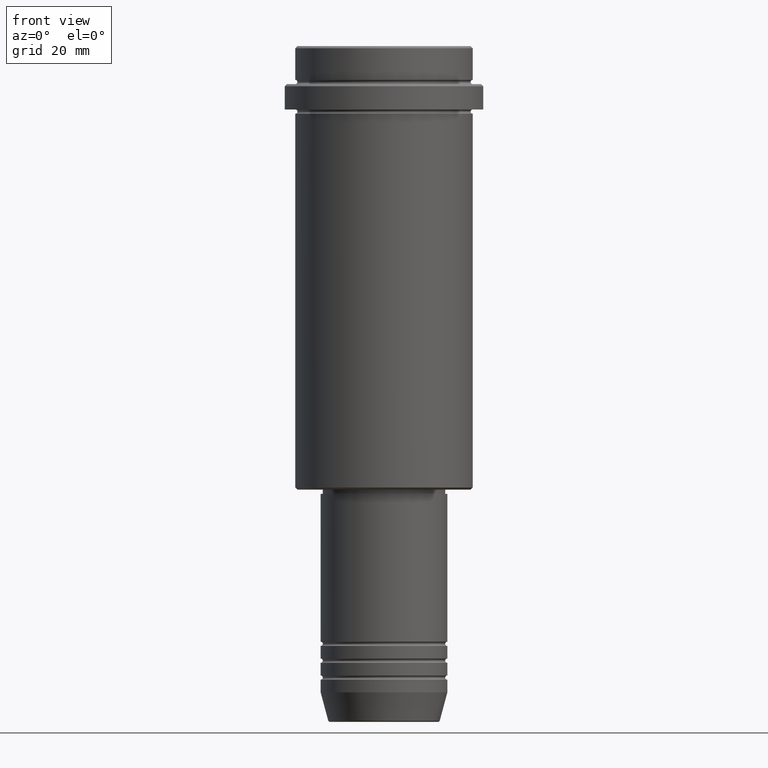
[diagram: clean part render]
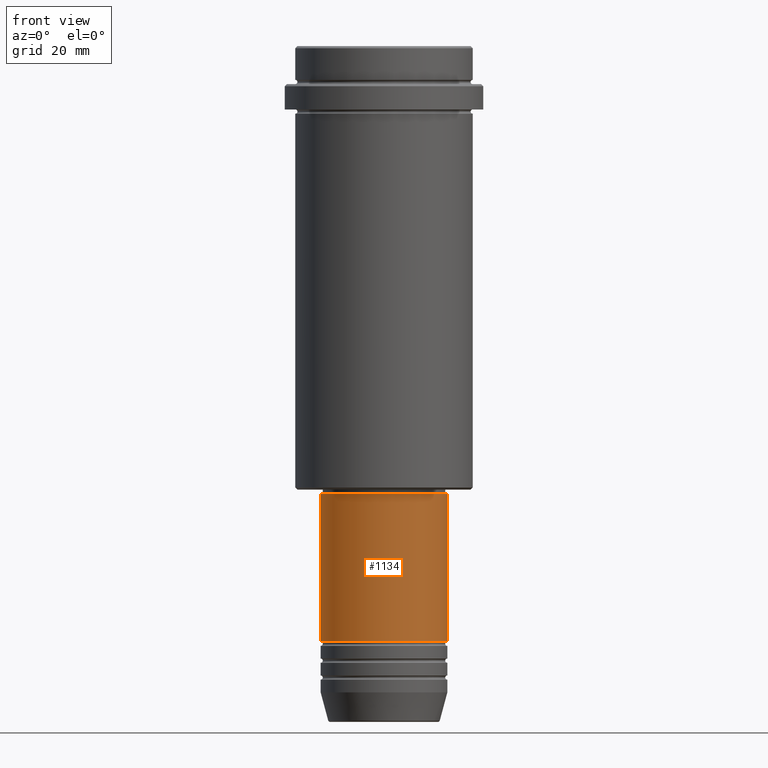
[diagram: same view with one face highlighted and labeled with its STEP entity id]
A machine part, front view. The second image highlights one B-rep face of the part: STEP entity #1134.
In plain terms, the highlighted cylindrical surface (partial cylindrical patch) has radius 15 mm, axis along (-0, -0, 1).
Its self-contained STEP definition (entity closure, byte-faithful):
#29 = LINE ( 'NONE', #992, #525 ) ;
#137 = ORIENTED_EDGE ( 'NONE', *, *, #231, .T. ) ;
#138 = CARTESIAN_POINT ( 'NONE',  ( 0.000000000000000000, 0.000000000000000000, 0.000000000000000000 ) ) ;
#143 = CYLINDRICAL_SURFACE ( 'NONE', #1349, 15.00000000000000000 ) ;
#172 = CIRCLE ( 'NONE', #520, 15.00000000000000000 ) ;
#193 = DIRECTION ( 'NONE',  ( -0.000000000000000000, -0.000000000000000000, 1.000000000000000000 ) ) ;
#231 = EDGE_CURVE ( 'NONE', #660, #436, #172, .T. ) ;
#280 = EDGE_CURVE ( 'NONE', #723, #456, #1113, .T. ) ;
#411 = CARTESIAN_POINT ( 'NONE',  ( -15.00000000000000000, 1.836970198721029589E-15, -106.0000000000000142 ) ) ;
#436 = VERTEX_POINT ( 'NONE', #842 ) ;
#456 = VERTEX_POINT ( 'NONE', #1133 ) ;
#469 = FACE_OUTER_BOUND ( 'NONE', #1201, .T. ) ;
#520 = AXIS2_PLACEMENT_3D ( 'NONE', #538, #970, #1199 ) ;
#525 = VECTOR ( 'NONE', #580, 1000.000000000000000 ) ;
#538 = CARTESIAN_POINT ( 'NONE',  ( 0.000000000000000000, 0.000000000000000000, -140.9999999999999147 ) ) ;
#580 = DIRECTION ( 'NONE',  ( -0.000000000000000000, -0.000000000000000000, 1.000000000000000000 ) ) ;
#583 = DIRECTION ( 'NONE',  ( -0.000000000000000000, -0.000000000000000000, 1.000000000000000000 ) ) ;
#640 = CARTESIAN_POINT ( 'NONE',  ( -15.00000000000000000, 1.836970198721029589E-15, -140.9999999999999147 ) ) ;
#650 = DIRECTION ( 'NONE',  ( 1.000000000000000000, 0.000000000000000000, 0.000000000000000000 ) ) ;
#660 = VERTEX_POINT ( 'NONE', #640 ) ;
#723 = VERTEX_POINT ( 'NONE', #411 ) ;
#748 = LINE ( 'NONE', #967, #963 ) ;
#785 = EDGE_CURVE ( 'NONE', #660, #723, #29, .T. ) ;
#837 = ORIENTED_EDGE ( 'NONE', *, *, #785, .F. ) ;
#842 = CARTESIAN_POINT ( 'NONE',  ( 15.00000000000000000, 0.000000000000000000, -140.9999999999999147 ) ) ;
#963 = VECTOR ( 'NONE', #193, 1000.000000000000000 ) ;
#967 = CARTESIAN_POINT ( 'NONE',  ( 15.00000000000000000, 0.000000000000000000, 0.000000000000000000 ) ) ;
#970 = DIRECTION ( 'NONE',  ( -0.000000000000000000, -0.000000000000000000, 1.000000000000000000 ) ) ;
#992 = CARTESIAN_POINT ( 'NONE',  ( -15.00000000000000000, 1.836970198721029589E-15, 0.000000000000000000 ) ) ;
#1009 = AXIS2_PLACEMENT_3D ( 'NONE', #1398, #1295, #650 ) ;
#1012 = DIRECTION ( 'NONE',  ( 1.000000000000000000, 0.000000000000000000, 0.000000000000000000 ) ) ;
#1110 = EDGE_CURVE ( 'NONE', #436, #456, #748, .T. ) ;
#1113 = CIRCLE ( 'NONE', #1009, 15.00000000000000000 ) ;
#1133 = CARTESIAN_POINT ( 'NONE',  ( 15.00000000000000000, 0.000000000000000000, -106.0000000000000142 ) ) ;
#1134 = ADVANCED_FACE ( 'NONE', ( #469 ), #143, .T. ) ;
#1173 = ORIENTED_EDGE ( 'NONE', *, *, #280, .F. ) ;
#1199 = DIRECTION ( 'NONE',  ( 1.000000000000000000, 0.000000000000000000, 0.000000000000000000 ) ) ;
#1201 = EDGE_LOOP ( 'NONE', ( #837, #137, #1319, #1173 ) ) ;
#1295 = DIRECTION ( 'NONE',  ( -0.000000000000000000, -0.000000000000000000, 1.000000000000000000 ) ) ;
#1319 = ORIENTED_EDGE ( 'NONE', *, *, #1110, .T. ) ;
#1349 = AXIS2_PLACEMENT_3D ( 'NONE', #138, #583, #1012 ) ;
#1398 = CARTESIAN_POINT ( 'NONE',  ( 0.000000000000000000, 0.000000000000000000, -106.0000000000000142 ) ) ;